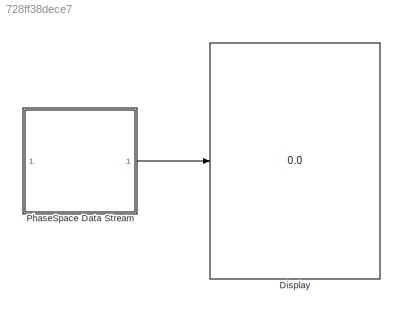
MODEL slx_728ff38dece7
KIND model
CONFIG AbsTol = 1e-6
CONFIG EnableMultiTasking = off
CONFIG FixedStep = 0.01
CONFIG MaxStep = auto
CONFIG MinStep = auto
CONFIG RelTol = 1e-6
CONFIG SampleTimeConstraint = Unconstrained
CONFIG SolverName = ode4
CONFIG StartTime = 0.0
CONFIG StopTime = inf
BLOCK [Display] Display
  Decimation = 1
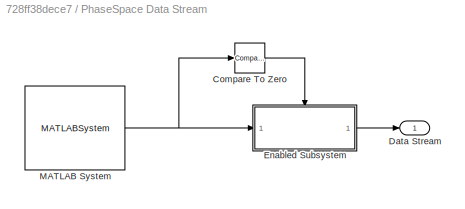
BLOCK [SubSystem] PhaseSpace Data Stream
BLOCK [Reference] PhaseSpace Data Stream/Compare To Zero  REF=simulink/Logic and Bit
Operations/Compare
To Zero
  SourceBlock = simulink/Logic and Bit\nOperations/Compare\nTo Zero
  SourceType = Compare To Zero
BLOCK [Outport] PhaseSpace Data Stream/Data Stream
  VectorParamsAs1DForOutWhenUnconnected = off
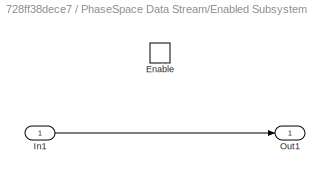
BLOCK [SubSystem] PhaseSpace Data Stream/Enabled Subsystem
  TreatAsAtomicUnit = on
BLOCK [EnablePort] PhaseSpace Data Stream/Enabled Subsystem/Enable
BLOCK [Inport] PhaseSpace Data Stream/Enabled Subsystem/In1
BLOCK [Outport] PhaseSpace Data Stream/Enabled Subsystem/Out1
  VectorParamsAs1DForOutWhenUnconnected = off
BLOCK [MATLABSystem] PhaseSpace Data Stream/MATLAB System
  MaskDisplay = disp('Stream_PS_ALL');\nport_label('output',1,'y');
  MaskType = PhaseSpace_ALL
  SampleTime = 0.01
  System = PhaseSpace_ALL
  platformSelection = platformSelection
  sampleRate = 0.1
LINE PhaseSpace Data Stream/Compare To Zero:1 -> PhaseSpace Data Stream/Enabled Subsystem:enable
LINE PhaseSpace Data Stream/Enabled Subsystem/In1:1 -> PhaseSpace Data Stream/Enabled Subsystem/Out1:1
LINE PhaseSpace Data Stream/Enabled Subsystem:1 -> PhaseSpace Data Stream/Data Stream:1
NET PhaseSpace Data Stream/MATLAB System:1 -> PhaseSpace Data Stream/Compare To Zero:1, PhaseSpace Data Stream/Enabled Subsystem:1
LINE PhaseSpace Data Stream:1 -> Display:1
note: NET lines group one-source signal fan-out (src -> all destinations, sorted); 1:1 wires keep LINE
